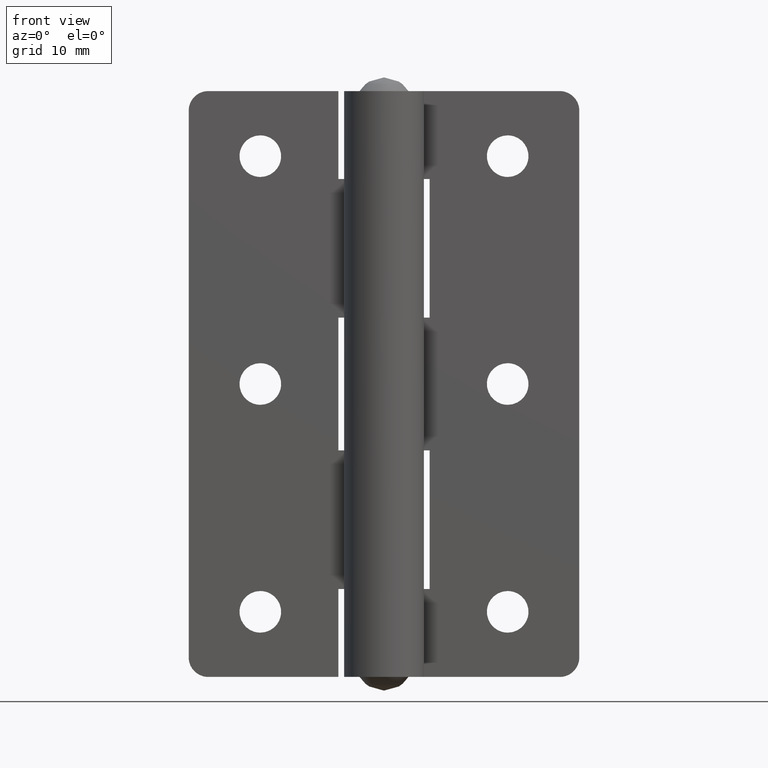
[diagram: clean part render]
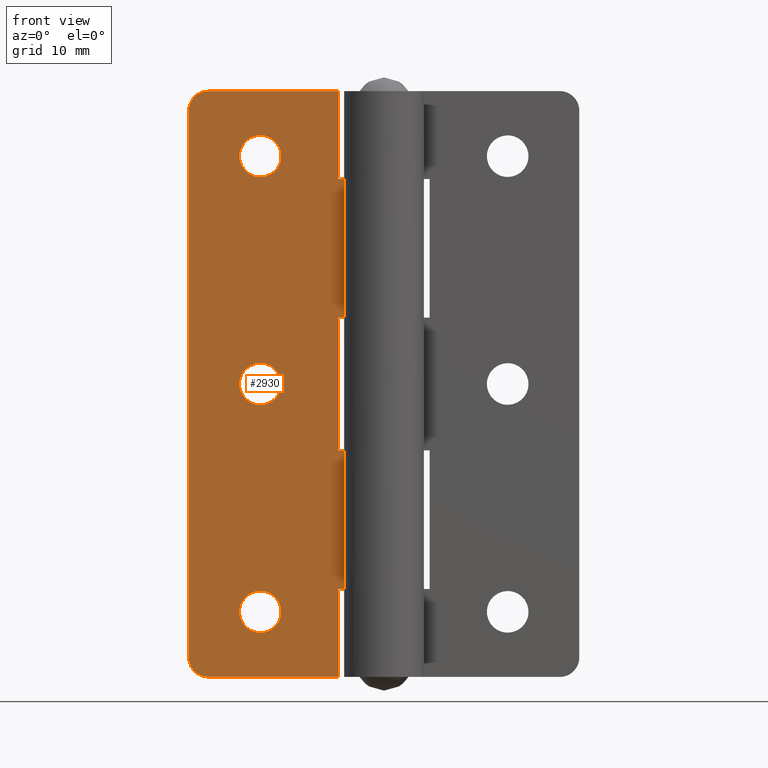
[diagram: same view with one face highlighted and labeled with its STEP entity id]
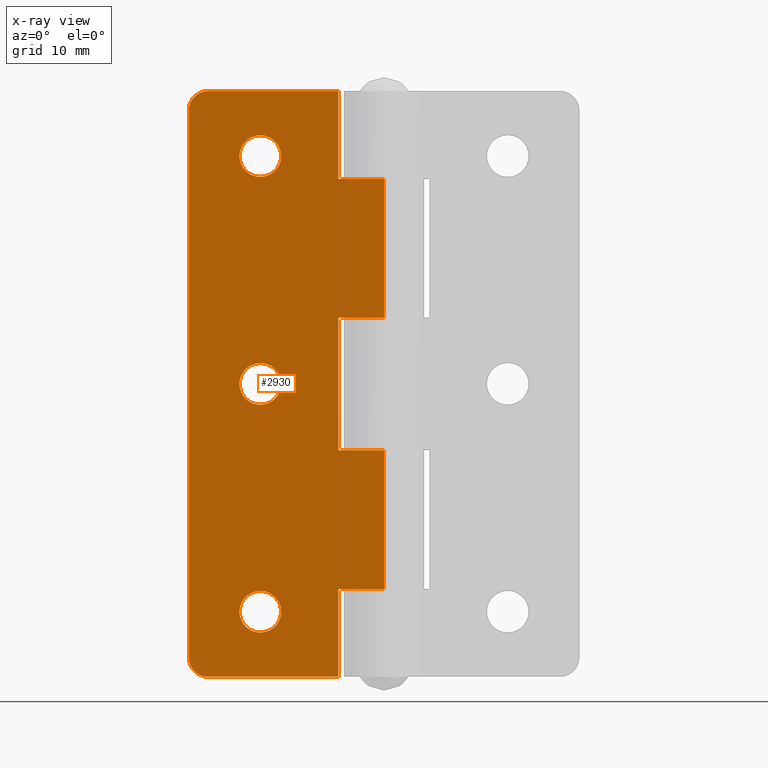
[diagram: x-ray of the same camera — body ghosted, the highlighted face saturated]
A machine part, front view. The second image highlights one B-rep face of the part: STEP entity #2930.
The next image is the same camera in x-ray: the body ghosted, the highlighted face saturated — about 0% of this face is hidden behind the body in this view.
In plain terms, the highlighted face is a freeform B-spline surface patch.
Its self-contained STEP definition (entity closure, byte-faithful):
#1621=CARTESIAN_POINT('',(-19.0,3.150000000000000,83.200000000000003));
#1622=VERTEX_POINT('',#1621);
#1623=CARTESIAN_POINT('',(-22.190135467939509,3.150000000000000,80.251069106411649));
#1624=VERTEX_POINT('',#1623);
#1625=CARTESIAN_POINT('',(-19.0,3.150000000000000,83.200000000000003));
#1626=CARTESIAN_POINT('',(-21.958049573152707,3.149999999999999,83.200000000000017));
#1627=CARTESIAN_POINT('',(-22.190135467939516,3.150000000000000,80.251069106411649));
#1635=(BOUNDED_CURVE()B_SPLINE_CURVE(2,(#1625,#1626,#1627),.UNSPECIFIED.,.F.,.U.)B_SPLINE_CURVE_WITH_KNOTS((3,3),(0.0,0.236331300623895),.UNSPECIFIED.)CURVE()GEOMETRIC_REPRESENTATION_ITEM()RATIONAL_B_SPLINE_CURVE((1.0,0.723120658615590,0.969723356153301))REPRESENTATION_ITEM(''));
#1636=EDGE_CURVE('',#1622,#1624,#1635,.T.);
#1677=CARTESIAN_POINT('',(-15.809864532060489,3.150000000000000,79.748930893588351));
#1678=VERTEX_POINT('',#1677);
#1684=CARTESIAN_POINT('',(-15.809864532060491,3.150000000000000,79.748930893588351));
#1685=CARTESIAN_POINT('',(-15.800000000000002,3.150000000000000,79.874271657492528));
#1686=CARTESIAN_POINT('',(-15.800000000000001,3.150000000000000,80.0));
#1687=CARTESIAN_POINT('',(-15.799999999999997,3.149999999999999,83.200000000000003));
#1688=CARTESIAN_POINT('',(-19.0,3.150000000000000,83.200000000000003));
#1696=(BOUNDED_CURVE()B_SPLINE_CURVE(2,(#1684,#1685,#1686,#1687,#1688),.UNSPECIFIED.,.F.,.U.)B_SPLINE_CURVE_WITH_KNOTS((3,2,3),(0.736331300623896,0.750000000000000,1.0),.UNSPECIFIED.)CURVE()GEOMETRIC_REPRESENTATION_ITEM()RATIONAL_B_SPLINE_CURVE((0.969723356153302,0.983986122570957,1.0,0.707106781186548,1.0))REPRESENTATION_ITEM(''));
#1697=EDGE_CURVE('',#1678,#1622,#1696,.T.);
#1720=CARTESIAN_POINT('',(-19.0,3.150000000000000,76.800000000000011));
#1721=VERTEX_POINT('',#1720);
#1722=CARTESIAN_POINT('',(-22.190135467939516,3.150000000000000,80.251069106411649));
#1723=CARTESIAN_POINT('',(-22.199999999999999,3.150000000000000,80.125728342507486));
#1724=CARTESIAN_POINT('',(-22.199999999999999,3.150000000000000,80.0));
#1725=CARTESIAN_POINT('',(-22.200000000000006,3.149999999999999,76.800000000000011));
#1726=CARTESIAN_POINT('',(-19.0,3.150000000000000,76.800000000000011));
#1734=(BOUNDED_CURVE()B_SPLINE_CURVE(2,(#1722,#1723,#1724,#1725,#1726),.UNSPECIFIED.,.F.,.U.)B_SPLINE_CURVE_WITH_KNOTS((3,2,3),(0.236331300623895,0.250000000000000,0.500000000000000),.UNSPECIFIED.)CURVE()GEOMETRIC_REPRESENTATION_ITEM()RATIONAL_B_SPLINE_CURVE((0.969723356153301,0.983986122570957,1.0,0.707106781186548,1.0))REPRESENTATION_ITEM(''));
#1735=EDGE_CURVE('',#1624,#1721,#1734,.T.);
#1737=CARTESIAN_POINT('',(-19.0,3.150000000000000,76.800000000000011));
#1738=CARTESIAN_POINT('',(-16.041950426847297,3.149999999999999,76.800000000000011));
#1739=CARTESIAN_POINT('',(-15.809864532060487,3.150000000000000,79.748930893588351));
#1747=(BOUNDED_CURVE()B_SPLINE_CURVE(2,(#1737,#1738,#1739),.UNSPECIFIED.,.F.,.U.)B_SPLINE_CURVE_WITH_KNOTS((3,3),(0.500000000000000,0.736331300623895),.UNSPECIFIED.)CURVE()GEOMETRIC_REPRESENTATION_ITEM()RATIONAL_B_SPLINE_CURVE((1.0,0.723120658615590,0.969723356153301))REPRESENTATION_ITEM(''));
#1748=EDGE_CURVE('',#1721,#1678,#1747,.T.);
#1803=CARTESIAN_POINT('',(-19.0,3.150000000000000,48.200000000000003));
#1804=VERTEX_POINT('',#1803);
#1805=CARTESIAN_POINT('',(-22.190135467939509,3.150000000000000,45.251069106411663));
#1806=VERTEX_POINT('',#1805);
#1807=CARTESIAN_POINT('',(-19.0,3.150000000000000,48.200000000000003));
#1808=CARTESIAN_POINT('',(-21.958049573152696,3.150000000000000,48.200000000000003));
#1809=CARTESIAN_POINT('',(-22.190135467939509,3.149999999999999,45.251069106411663));
#1817=(BOUNDED_CURVE()B_SPLINE_CURVE(2,(#1807,#1808,#1809),.UNSPECIFIED.,.F.,.U.)B_SPLINE_CURVE_WITH_KNOTS((3,3),(0.0,0.236331300623895),.UNSPECIFIED.)CURVE()GEOMETRIC_REPRESENTATION_ITEM()RATIONAL_B_SPLINE_CURVE((1.0,0.723120658615591,0.969723356153301))REPRESENTATION_ITEM(''));
#1818=EDGE_CURVE('',#1804,#1806,#1817,.T.);
#1859=CARTESIAN_POINT('',(-15.809864532060489,3.150000000000000,44.748930893588337));
#1860=VERTEX_POINT('',#1859);
#1866=CARTESIAN_POINT('',(-15.809864532060491,3.150000000000000,44.748930893588344));
#1867=CARTESIAN_POINT('',(-15.799999999999997,3.150000000000000,44.874271657492521));
#1868=CARTESIAN_POINT('',(-15.800000000000001,3.150000000000000,45.0));
#1869=CARTESIAN_POINT('',(-15.799999999999997,3.149999999999999,48.199999999999989));
#1870=CARTESIAN_POINT('',(-19.0,3.150000000000000,48.200000000000003));
#1878=(BOUNDED_CURVE()B_SPLINE_CURVE(2,(#1866,#1867,#1868,#1869,#1870),.UNSPECIFIED.,.F.,.U.)B_SPLINE_CURVE_WITH_KNOTS((3,2,3),(0.736331300623895,0.750000000000000,1.0),.UNSPECIFIED.)CURVE()GEOMETRIC_REPRESENTATION_ITEM()RATIONAL_B_SPLINE_CURVE((0.969723356153301,0.983986122570957,1.0,0.707106781186548,1.0))REPRESENTATION_ITEM(''));
#1879=EDGE_CURVE('',#1860,#1804,#1878,.T.);
#1902=CARTESIAN_POINT('',(-19.0,3.150000000000000,41.799999999999997));
#1903=VERTEX_POINT('',#1902);
#1904=CARTESIAN_POINT('',(-22.190135467939516,3.149999999999999,45.251069106411656));
#1905=CARTESIAN_POINT('',(-22.199999999999999,3.150000000000000,45.125728342507479));
#1906=CARTESIAN_POINT('',(-22.199999999999999,3.150000000000000,45.0));
#1907=CARTESIAN_POINT('',(-22.200000000000006,3.149999999999999,41.799999999999997));
#1908=CARTESIAN_POINT('',(-19.0,3.150000000000000,41.799999999999997));
#1916=(BOUNDED_CURVE()B_SPLINE_CURVE(2,(#1904,#1905,#1906,#1907,#1908),.UNSPECIFIED.,.F.,.U.)B_SPLINE_CURVE_WITH_KNOTS((3,2,3),(0.236331300623895,0.250000000000000,0.500000000000000),.UNSPECIFIED.)CURVE()GEOMETRIC_REPRESENTATION_ITEM()RATIONAL_B_SPLINE_CURVE((0.969723356153301,0.983986122570957,1.0,0.707106781186548,1.0))REPRESENTATION_ITEM(''));
#1917=EDGE_CURVE('',#1806,#1903,#1916,.T.);
#1919=CARTESIAN_POINT('',(-19.0,3.150000000000000,41.799999999999997));
#1920=CARTESIAN_POINT('',(-16.041950426847297,3.149999999999999,41.800000000000004));
#1921=CARTESIAN_POINT('',(-15.809864532060487,3.150000000000000,44.748930893588344));
#1929=(BOUNDED_CURVE()B_SPLINE_CURVE(2,(#1919,#1920,#1921),.UNSPECIFIED.,.F.,.U.)B_SPLINE_CURVE_WITH_KNOTS((3,3),(0.500000000000000,0.736331300623895),.UNSPECIFIED.)CURVE()GEOMETRIC_REPRESENTATION_ITEM()RATIONAL_B_SPLINE_CURVE((1.0,0.723120658615590,0.969723356153301))REPRESENTATION_ITEM(''));
#1930=EDGE_CURVE('',#1903,#1860,#1929,.T.);
#1985=CARTESIAN_POINT('',(-19.0,3.150000000000000,13.200000000000200));
#1986=VERTEX_POINT('',#1985);
#1987=CARTESIAN_POINT('',(-22.190135467939509,3.150000000000000,10.251069106411849));
#1988=VERTEX_POINT('',#1987);
#1989=CARTESIAN_POINT('',(-19.0,3.150000000000000,13.200000000000200));
#1990=CARTESIAN_POINT('',(-21.958049573152703,3.149999999999999,13.200000000000200));
#1991=CARTESIAN_POINT('',(-22.190135467939516,3.150000000000000,10.251069106411853));
#1999=(BOUNDED_CURVE()B_SPLINE_CURVE(2,(#1989,#1990,#1991),.UNSPECIFIED.,.F.,.U.)B_SPLINE_CURVE_WITH_KNOTS((3,3),(0.0,0.236331300623895),.UNSPECIFIED.)CURVE()GEOMETRIC_REPRESENTATION_ITEM()RATIONAL_B_SPLINE_CURVE((1.0,0.723120658615590,0.969723356153301))REPRESENTATION_ITEM(''));
#2000=EDGE_CURVE('',#1986,#1988,#1999,.T.);
#2041=CARTESIAN_POINT('',(-15.809864532060489,3.150000000000000,9.748930893588545));
#2042=VERTEX_POINT('',#2041);
#2048=CARTESIAN_POINT('',(-15.809864532060484,3.150000000000000,9.748930893588545));
#2049=CARTESIAN_POINT('',(-15.799999999999999,3.150000000000000,9.874271657492722));
#2050=CARTESIAN_POINT('',(-15.800000000000001,3.150000000000000,10.000000000000201));
#2051=CARTESIAN_POINT('',(-15.799999999999997,3.149999999999999,13.200000000000200));
#2052=CARTESIAN_POINT('',(-19.0,3.150000000000000,13.200000000000200));
#2060=(BOUNDED_CURVE()B_SPLINE_CURVE(2,(#2048,#2049,#2050,#2051,#2052),.UNSPECIFIED.,.F.,.U.)B_SPLINE_CURVE_WITH_KNOTS((3,2,3),(0.736331300623895,0.750000000000000,1.0),.UNSPECIFIED.)CURVE()GEOMETRIC_REPRESENTATION_ITEM()RATIONAL_B_SPLINE_CURVE((0.969723356153301,0.983986122570957,1.0,0.707106781186548,1.0))REPRESENTATION_ITEM(''));
#2061=EDGE_CURVE('',#2042,#1986,#2060,.T.);
#2084=CARTESIAN_POINT('',(-19.0,3.150000000000000,6.800000000000200));
#2085=VERTEX_POINT('',#2084);
#2086=CARTESIAN_POINT('',(-22.190135467939509,3.150000000000001,10.251069106411853));
#2087=CARTESIAN_POINT('',(-22.200000000000006,3.150000000000000,10.125728342507674));
#2088=CARTESIAN_POINT('',(-22.199999999999999,3.150000000000000,10.000000000000201));
#2089=CARTESIAN_POINT('',(-22.200000000000006,3.149999999999999,6.800000000000200));
#2090=CARTESIAN_POINT('',(-19.0,3.150000000000000,6.800000000000200));
#2098=(BOUNDED_CURVE()B_SPLINE_CURVE(2,(#2086,#2087,#2088,#2089,#2090),.UNSPECIFIED.,.F.,.U.)B_SPLINE_CURVE_WITH_KNOTS((3,2,3),(0.236331300623895,0.250000000000000,0.500000000000000),.UNSPECIFIED.)CURVE()GEOMETRIC_REPRESENTATION_ITEM()RATIONAL_B_SPLINE_CURVE((0.969723356153301,0.983986122570957,1.0,0.707106781186548,1.0))REPRESENTATION_ITEM(''));
#2099=EDGE_CURVE('',#1988,#2085,#2098,.T.);
#2101=CARTESIAN_POINT('',(-19.0,3.150000000000000,6.800000000000200));
#2102=CARTESIAN_POINT('',(-16.041950426847297,3.149999999999999,6.800000000000201));
#2103=CARTESIAN_POINT('',(-15.809864532060487,3.150000000000000,9.748930893588545));
#2111=(BOUNDED_CURVE()B_SPLINE_CURVE(2,(#2101,#2102,#2103),.UNSPECIFIED.,.F.,.U.)B_SPLINE_CURVE_WITH_KNOTS((3,3),(0.500000000000000,0.736331300623895),.UNSPECIFIED.)CURVE()GEOMETRIC_REPRESENTATION_ITEM()RATIONAL_B_SPLINE_CURVE((1.0,0.723120658615590,0.969723356153301))REPRESENTATION_ITEM(''));
#2112=EDGE_CURVE('',#2085,#2042,#2111,.T.);
#2163=CARTESIAN_POINT('',(-27.0,3.150000000000000,90.0));
#2164=VERTEX_POINT('',#2163);
#2165=CARTESIAN_POINT('',(-30.0,3.150000000000000,87.0));
#2166=VERTEX_POINT('',#2165);
#2167=CARTESIAN_POINT('',(-27.0,3.150000000000000,90.0));
#2168=CARTESIAN_POINT('',(-30.000000000000004,3.149999999999999,89.999999999999986));
#2169=CARTESIAN_POINT('',(-30.0,3.150000000000000,87.0));
#2177=(BOUNDED_CURVE()B_SPLINE_CURVE(2,(#2167,#2168,#2169),.UNSPECIFIED.,.F.,.U.)CURVE()GEOMETRIC_REPRESENTATION_ITEM()QUASI_UNIFORM_CURVE()RATIONAL_B_SPLINE_CURVE((1.0,0.707106781186548,1.0))REPRESENTATION_ITEM(''));
#2178=EDGE_CURVE('',#2164,#2166,#2177,.T.);
#2224=CARTESIAN_POINT('',(-30.0,3.150000000000000,3.0));
#2225=VERTEX_POINT('',#2224);
#2226=CARTESIAN_POINT('',(-27.0,3.150000000000000,0.0));
#2227=VERTEX_POINT('',#2226);
#2228=CARTESIAN_POINT('',(-30.0,3.150000000000000,3.0));
#2229=CARTESIAN_POINT('',(-30.000000000000004,3.149999999999999,0.0));
#2230=CARTESIAN_POINT('',(-27.0,3.150000000000000,0.0));
#2238=(BOUNDED_CURVE()B_SPLINE_CURVE(2,(#2228,#2229,#2230),.UNSPECIFIED.,.F.,.U.)CURVE()GEOMETRIC_REPRESENTATION_ITEM()QUASI_UNIFORM_CURVE()RATIONAL_B_SPLINE_CURVE((1.0,0.707106781186548,1.0))REPRESENTATION_ITEM(''));
#2239=EDGE_CURVE('',#2225,#2227,#2238,.T.);
#2276=CARTESIAN_POINT('',(-7.000000000000100,3.150000000000000,34.799999999999997));
#2277=VERTEX_POINT('',#2276);
#2292=CARTESIAN_POINT('',(-7.000000000000100,3.150000000000000,55.200000000000003));
#2293=VERTEX_POINT('',#2292);
#2299=CARTESIAN_POINT('',(-7.000000000000100,3.150000000000000,34.799999999999997));
#2300=CARTESIAN_POINT('',(-7.000000000000100,3.150000000000000,55.200000000000003));
#2301=QUASI_UNIFORM_CURVE('',1,(#2299,#2300),.UNSPECIFIED.,.F.,.U.);
#2302=EDGE_CURVE('',#2277,#2293,#2301,.T.);
#2342=CARTESIAN_POINT('',(1.928787E-016,3.150000000000000,55.200000000000003));
#2343=VERTEX_POINT('',#2342);
#2363=CARTESIAN_POINT('',(-7.000000000000100,3.150000000000000,55.200000000000003));
#2364=CARTESIAN_POINT('',(1.928787E-016,3.150000000000000,55.200000000000003));
#2365=QUASI_UNIFORM_CURVE('',1,(#2363,#2364),.UNSPECIFIED.,.F.,.U.);
#2366=EDGE_CURVE('',#2293,#2343,#2365,.T.);
#2390=CARTESIAN_POINT('',(1.928787E-016,3.150000000000000,34.799999999999997));
#2391=VERTEX_POINT('',#2390);
#2392=CARTESIAN_POINT('',(1.928787E-016,3.150000000000000,34.799999999999997));
#2393=CARTESIAN_POINT('',(-7.000000000000100,3.150000000000000,34.799999999999997));
#2394=QUASI_UNIFORM_CURVE('',1,(#2392,#2393),.UNSPECIFIED.,.F.,.U.);
#2395=EDGE_CURVE('',#2391,#2277,#2394,.T.);
#2452=CARTESIAN_POINT('',(-7.000000000000100,3.150000000000000,13.500000000000000));
#2453=VERTEX_POINT('',#2452);
#2454=CARTESIAN_POINT('',(-7.000000000000100,3.150000000000000,0.0));
#2455=VERTEX_POINT('',#2454);
#2456=CARTESIAN_POINT('',(-7.000000000000100,3.150000000000000,13.500000000000000));
#2457=CARTESIAN_POINT('',(-7.000000000000100,3.150000000000000,0.0));
#2458=QUASI_UNIFORM_CURVE('',1,(#2456,#2457),.UNSPECIFIED.,.F.,.U.);
#2459=EDGE_CURVE('',#2453,#2455,#2458,.T.);
#2518=CARTESIAN_POINT('',(1.928787E-016,3.150000000000000,13.499999999999840));
#2519=VERTEX_POINT('',#2518);
#2539=CARTESIAN_POINT('',(1.928787E-016,3.150000000000000,13.499999999999840));
#2540=CARTESIAN_POINT('',(-7.000000000000100,3.150000000000000,13.500000000000000));
#2541=QUASI_UNIFORM_CURVE('',1,(#2539,#2540),.UNSPECIFIED.,.F.,.U.);
#2542=EDGE_CURVE('',#2519,#2453,#2541,.T.);
#2558=CARTESIAN_POINT('',(-7.000000000000100,3.150000000000000,90.0));
#2559=VERTEX_POINT('',#2558);
#2560=CARTESIAN_POINT('',(-7.000000000000100,3.150000000000000,76.500000000000000));
#2561=VERTEX_POINT('',#2560);
#2562=CARTESIAN_POINT('',(-7.000000000000100,3.150000000000000,90.0));
#2563=CARTESIAN_POINT('',(-7.000000000000100,3.150000000000000,76.500000000000000));
#2564=QUASI_UNIFORM_CURVE('',1,(#2562,#2563),.UNSPECIFIED.,.F.,.U.);
#2565=EDGE_CURVE('',#2559,#2561,#2564,.T.);
#2623=CARTESIAN_POINT('',(1.928787E-016,3.150000000000000,76.500000000000000));
#2624=VERTEX_POINT('',#2623);
#2625=CARTESIAN_POINT('',(-7.000000000000100,3.150000000000000,76.500000000000000));
#2626=CARTESIAN_POINT('',(1.928787E-016,3.150000000000000,76.500000000000000));
#2627=QUASI_UNIFORM_CURVE('',1,(#2625,#2626),.UNSPECIFIED.,.F.,.U.);
#2628=EDGE_CURVE('',#2561,#2624,#2627,.T.);
#2664=CARTESIAN_POINT('',(-7.000000000000100,3.150000000000000,0.0));
#2665=CARTESIAN_POINT('',(-27.0,3.150000000000000,0.0));
#2666=QUASI_UNIFORM_CURVE('',1,(#2664,#2665),.UNSPECIFIED.,.F.,.U.);
#2667=EDGE_CURVE('',#2455,#2227,#2666,.T.);
#2690=CARTESIAN_POINT('',(-7.000000000000100,3.150000000000000,90.0));
#2691=CARTESIAN_POINT('',(-27.0,3.150000000000000,90.0));
#2692=QUASI_UNIFORM_CURVE('',1,(#2690,#2691),.UNSPECIFIED.,.F.,.U.);
#2693=EDGE_CURVE('',#2559,#2164,#2692,.T.);
#2710=CARTESIAN_POINT('',(-30.0,3.150000000000000,87.0));
#2711=CARTESIAN_POINT('',(-30.0,3.150000000000000,3.0));
#2712=QUASI_UNIFORM_CURVE('',1,(#2710,#2711),.UNSPECIFIED.,.F.,.U.);
#2713=EDGE_CURVE('',#2166,#2225,#2712,.T.);
#2748=CARTESIAN_POINT('',(1.928787E-016,3.150000000000000,76.500000000000000));
#2749=CARTESIAN_POINT('',(1.928787E-016,3.150000000000000,55.200000000000003));
#2750=QUASI_UNIFORM_CURVE('',1,(#2748,#2749),.UNSPECIFIED.,.F.,.U.);
#2751=EDGE_CURVE('',#2624,#2343,#2750,.T.);
#2779=CARTESIAN_POINT('',(1.928787E-016,3.150000000000000,34.799999999999997));
#2780=CARTESIAN_POINT('',(1.928787E-016,3.150000000000000,13.499999999999840));
#2781=QUASI_UNIFORM_CURVE('',1,(#2779,#2780),.UNSPECIFIED.,.F.,.U.);
#2782=EDGE_CURVE('',#2391,#2519,#2781,.T.);
#2891=CARTESIAN_POINT('',(-31.498499941854181,3.150000000000000,94.495499825562533));
#2892=CARTESIAN_POINT('',(-31.498499941854181,3.150000000000000,-4.495502239550651));
#2893=CARTESIAN_POINT('',(1.498500746516883,3.150000000000000,94.495499825562533));
#2894=CARTESIAN_POINT('',(1.498500746516883,3.150000000000000,-4.495502239550651));
#2895=B_SPLINE_SURFACE_WITH_KNOTS('',1,1,((#2891,#2893),(#2892,#2894)),.UNSPECIFIED.,.F.,.F.,.U.,(2,2),(2,2),(0.0,98.991002065113179),(0.0,32.997000688371060),.UNSPECIFIED.);
#2896=ORIENTED_EDGE('',*,*,#2713,.T.);
#2897=ORIENTED_EDGE('',*,*,#2239,.T.);
#2898=ORIENTED_EDGE('',*,*,#2667,.F.);
#2899=ORIENTED_EDGE('',*,*,#2459,.F.);
#2900=ORIENTED_EDGE('',*,*,#2542,.F.);
#2901=ORIENTED_EDGE('',*,*,#2782,.F.);
#2902=ORIENTED_EDGE('',*,*,#2395,.T.);
#2903=ORIENTED_EDGE('',*,*,#2302,.T.);
#2904=ORIENTED_EDGE('',*,*,#2366,.T.);
#2905=ORIENTED_EDGE('',*,*,#2751,.F.);
#2906=ORIENTED_EDGE('',*,*,#2628,.F.);
#2907=ORIENTED_EDGE('',*,*,#2565,.F.);
#2908=ORIENTED_EDGE('',*,*,#2693,.T.);
#2909=ORIENTED_EDGE('',*,*,#2178,.T.);
#2910=EDGE_LOOP('',(#2896,#2897,#2898,#2899,#2900,#2901,#2902,#2903,#2904,#2905,#2906,#2907,#2908,#2909));
#2911=FACE_OUTER_BOUND('',#2910,.T.);
#2912=ORIENTED_EDGE('',*,*,#2112,.F.);
#2913=ORIENTED_EDGE('',*,*,#2099,.F.);
#2914=ORIENTED_EDGE('',*,*,#2000,.F.);
#2915=ORIENTED_EDGE('',*,*,#2061,.F.);
#2916=EDGE_LOOP('',(#2912,#2913,#2914,#2915));
#2917=FACE_BOUND('',#2916,.T.);
#2918=ORIENTED_EDGE('',*,*,#1930,.F.);
#2919=ORIENTED_EDGE('',*,*,#1917,.F.);
#2920=ORIENTED_EDGE('',*,*,#1818,.F.);
#2921=ORIENTED_EDGE('',*,*,#1879,.F.);
#2922=EDGE_LOOP('',(#2918,#2919,#2920,#2921));
#2923=FACE_BOUND('',#2922,.T.);
#2924=ORIENTED_EDGE('',*,*,#1748,.F.);
#2925=ORIENTED_EDGE('',*,*,#1735,.F.);
#2926=ORIENTED_EDGE('',*,*,#1636,.F.);
#2927=ORIENTED_EDGE('',*,*,#1697,.F.);
#2928=EDGE_LOOP('',(#2924,#2925,#2926,#2927));
#2929=FACE_BOUND('',#2928,.T.);
#2930=ADVANCED_FACE('',(#2911,#2917,#2923,#2929),#2895,.T.);